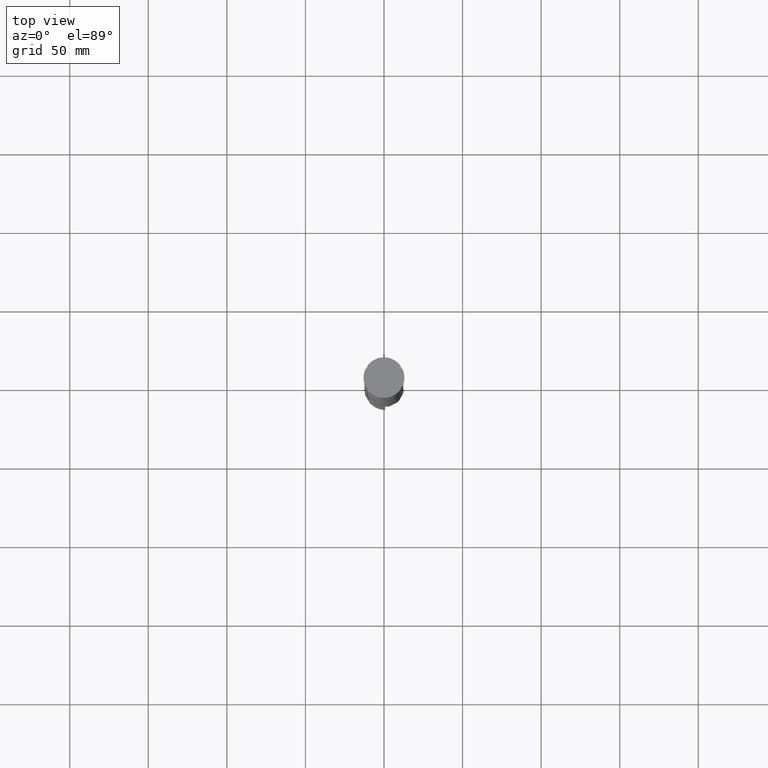
[diagram: clean part render]
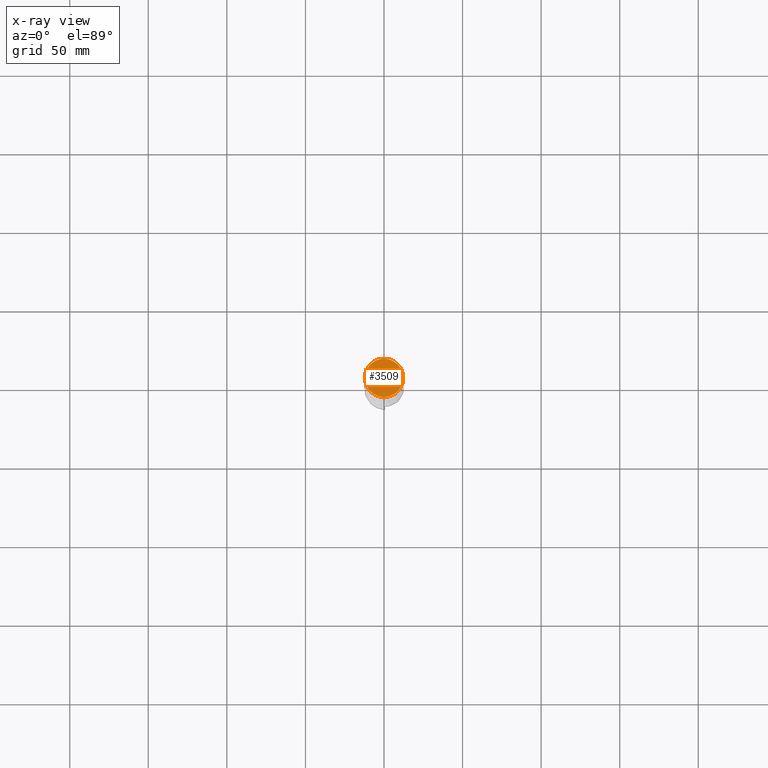
[diagram: x-ray — body ghosted, one internal face saturated and labeled with its STEP entity id]
A machine part, top view, then the same camera in x-ray: the body is ghosted and one INTERNAL B-rep face — a face not visible from any outside direction — is saturated and labeled: STEP entity #3509.
In plain terms, the highlighted planar face has unit normal (0, 0, -1).
Its self-contained STEP definition (entity closure, byte-faithful):
#325 = AXIS2_PLACEMENT_3D ( 'NONE', #2813, #4242, #4172 ) ;
#486 = DIRECTION ( 'NONE',  ( 0.000000000000000000, 0.000000000000000000, -1.000000000000000000 ) ) ;
#549 = CIRCLE ( 'NONE', #325, 12.20000000000000639 ) ;
#711 = EDGE_LOOP ( 'NONE', ( #3438, #2292 ) ) ;
#1174 = FACE_OUTER_BOUND ( 'NONE', #711, .T. ) ;
#1228 = DIRECTION ( 'NONE',  ( -1.000000000000000000, 0.000000000000000000, 0.000000000000000000 ) ) ;
#1501 = VERTEX_POINT ( 'NONE', #3025 ) ;
#1645 = CARTESIAN_POINT ( 'NONE',  ( -12.20000000000000639, 0.000000000000000000, -12.00000000000000000 ) ) ;
#1901 = CARTESIAN_POINT ( 'NONE',  ( 0.000000000000000000, 0.000000000000000000, -12.00000000000000000 ) ) ;
#2292 = ORIENTED_EDGE ( 'NONE', *, *, #4549, .T. ) ;
#2622 = PLANE ( 'NONE',  #3511 ) ;
#2669 = CARTESIAN_POINT ( 'NONE',  ( 0.000000000000000000, 0.000000000000000000, -12.00000000000000000 ) ) ;
#2813 = CARTESIAN_POINT ( 'NONE',  ( 0.000000000000000000, 0.000000000000000000, -12.00000000000000000 ) ) ;
#2840 = EDGE_CURVE ( 'NONE', #4076, #1501, #3888, .T. ) ;
#3025 = CARTESIAN_POINT ( 'NONE',  ( 12.20000000000000639, 1.512438796946981880E-15, -12.00000000000000000 ) ) ;
#3325 = DIRECTION ( 'NONE',  ( -0.000000000000000000, -0.000000000000000000, 1.000000000000000000 ) ) ;
#3438 = ORIENTED_EDGE ( 'NONE', *, *, #2840, .T. ) ;
#3509 = ADVANCED_FACE ( 'NONE', ( #1174 ), #2622, .F. ) ;
#3511 = AXIS2_PLACEMENT_3D ( 'NONE', #2669, #486, #3749 ) ;
#3749 = DIRECTION ( 'NONE',  ( -1.000000000000000000, 0.000000000000000000, -0.000000000000000000 ) ) ;
#3888 = CIRCLE ( 'NONE', #4198, 12.20000000000000639 ) ;
#4076 = VERTEX_POINT ( 'NONE', #1645 ) ;
#4172 = DIRECTION ( 'NONE',  ( -1.000000000000000000, 0.000000000000000000, 0.000000000000000000 ) ) ;
#4198 = AXIS2_PLACEMENT_3D ( 'NONE', #1901, #3325, #1228 ) ;
#4242 = DIRECTION ( 'NONE',  ( -0.000000000000000000, -0.000000000000000000, 1.000000000000000000 ) ) ;
#4549 = EDGE_CURVE ( 'NONE', #1501, #4076, #549, .T. ) ;